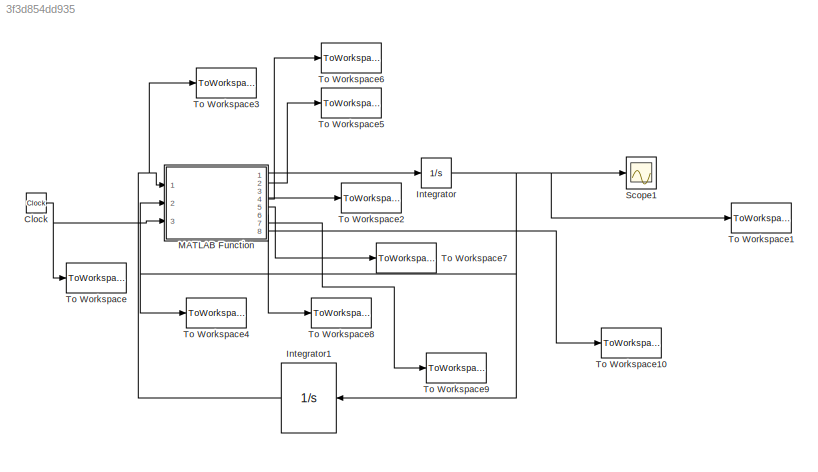
MODEL slx_3f3d854dd935
KIND model
BLOCK [Clock] Clock
BLOCK [Integrator] Integrator
  InitialCondition = [0;0]
  Ports = [1, 1]
BLOCK [Integrator] Integrator1
  InitialCondition = [1;0.8]
  Ports = [1, 1]
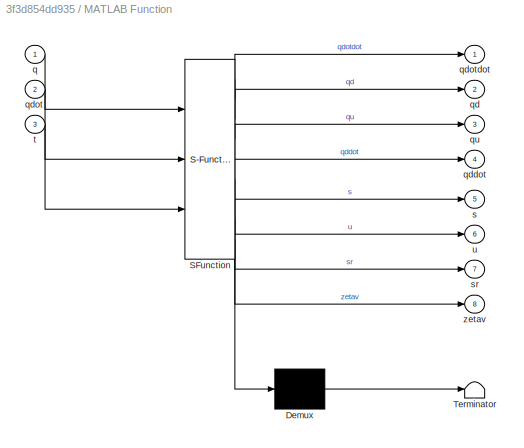
BLOCK [SubSystem] MATLAB Function
  ErrorFcn = Stateflow.Translate.translate
  PermitHierarchicalResolution = ExplicitOnly
  Ports = [3, 8]
  RequestExecContextInheritance = off
  SFBlockType = MATLAB Function
  TreatAsAtomicUnit = on
BLOCK [Demux] MATLAB Function/ Demux 
  Outputs = 1
  Ports = [1, 1]
BLOCK [S-Function] MATLAB Function/ SFunction 
  EnableBusSupport = on
  FunctionName = sf_sfun
  PortCounts = [3 9]
  Ports = [3, 9]
  Tag = Stateflow S-Function discretetime 2
BLOCK [Terminator] MATLAB Function/ Terminator 
BLOCK [Inport] MATLAB Function/q
  IconDisplay = Port number
BLOCK [Outport] MATLAB Function/qd
  IconDisplay = Port number
  Port = 2
BLOCK [Outport] MATLAB Function/qddot
  IconDisplay = Port number
  Port = 4
BLOCK [Inport] MATLAB Function/qdot
  IconDisplay = Port number
  Port = 2
BLOCK [Outport] MATLAB Function/qdotdot
  IconDisplay = Port number
BLOCK [Outport] MATLAB Function/qu
  IconDisplay = Port number
  Port = 3
BLOCK [Outport] MATLAB Function/s
  IconDisplay = Port number
  Port = 5
BLOCK [Outport] MATLAB Function/sr
  IconDisplay = Port number
  Port = 7
BLOCK [Inport] MATLAB Function/t
  IconDisplay = Port number
  Port = 3
BLOCK [Outport] MATLAB Function/u
  IconDisplay = Port number
  Port = 6
BLOCK [Outport] MATLAB Function/zetav
  IconDisplay = Port number
  Port = 8
BLOCK [Scope] Scope1
  DataFormat = StructureWithTime
  Floating = off
  LimitDataPoints = off
  NumInputPorts = 1
  Ports = [1]
  SaveName = ScopeData1
  SaveToWorkspace = on
  ShowLegends = off
  TimeRange = 20
  YMax = 0.3034
  YMin = -0.30549
BLOCK [ToWorkspace] To Workspace
  FixptAsFi = on
  MaxDataPoints = inf
  Ports = [1]
  SampleTime = -1
  Save2DSignal = 3-D array (concatenate along third dimension)
  VariableName = t
BLOCK [ToWorkspace] To Workspace1
  FixptAsFi = on
  MaxDataPoints = inf
  Ports = [1]
  SampleTime = -1
  Save2DSignal = 3-D array (concatenate along third dimension)
  VariableName = x
BLOCK [ToWorkspace] To Workspace10
  FixptAsFi = on
  MaxDataPoints = inf
  Ports = [1]
  SampleTime = -1
  Save2DSignal = 3-D array (concatenate along third dimension)
  VariableName = zetav
BLOCK [ToWorkspace] To Workspace2
  FixptAsFi = on
  MaxDataPoints = inf
  Ports = [1]
  SampleTime = -1
  Save2DSignal = 3-D array (concatenate along third dimension)
  VariableName = qu
BLOCK [ToWorkspace] To Workspace3
  FixptAsFi = on
  MaxDataPoints = inf
  Ports = [1]
  SampleTime = -1
  Save2DSignal = 3-D array (concatenate along third dimension)
  VariableName = q
BLOCK [ToWorkspace] To Workspace4
  FixptAsFi = on
  MaxDataPoints = inf
  Ports = [1]
  SampleTime = -1
  Save2DSignal = 3-D array (concatenate along third dimension)
  VariableName = qdot
BLOCK [ToWorkspace] To Workspace5
  FixptAsFi = on
  MaxDataPoints = inf
  Ports = [1]
  SampleTime = -1
  Save2DSignal = 3-D array (concatenate along third dimension)
  VariableName = qd
BLOCK [ToWorkspace] To Workspace6
  FixptAsFi = on
  MaxDataPoints = inf
  Ports = [1]
  SampleTime = -1
  Save2DSignal = 3-D array (concatenate along third dimension)
  VariableName = qddot
BLOCK [ToWorkspace] To Workspace7
  FixptAsFi = on
  MaxDataPoints = inf
  Ports = [1]
  SampleTime = -1
  Save2DSignal = 3-D array (concatenate along third dimension)
  VariableName = s
BLOCK [ToWorkspace] To Workspace8
  FixptAsFi = on
  MaxDataPoints = inf
  Ports = [1]
  SampleTime = -1
  Save2DSignal = 3-D array (concatenate along third dimension)
  VariableName = u
BLOCK [ToWorkspace] To Workspace9
  FixptAsFi = on
  MaxDataPoints = inf
  Ports = [1]
  SampleTime = -1
  Save2DSignal = 3-D array (concatenate along third dimension)
  VariableName = sr
NET Clock:1 -> MATLAB Function:3, To Workspace:1
NET Integrator1:1 -> MATLAB Function:1, To Workspace3:1
NET Integrator:1 -> Integrator1:1, MATLAB Function:2, Scope1:1, To Workspace1:1, To Workspace4:1
LINE MATLAB Function:1 -> Integrator:1
LINE MATLAB Function:2 -> To Workspace5:1
LINE MATLAB Function:3 -> To Workspace2:1
LINE MATLAB Function:4 -> To Workspace6:1
LINE MATLAB Function:5 -> To Workspace7:1
LINE MATLAB Function:6 -> To Workspace8:1
LINE MATLAB Function:7 -> To Workspace9:1
LINE MATLAB Function:8 -> To Workspace10:1
note: NET lines group one-source signal fan-out (src -> all destinations, sorted); 1:1 wires keep LINE
